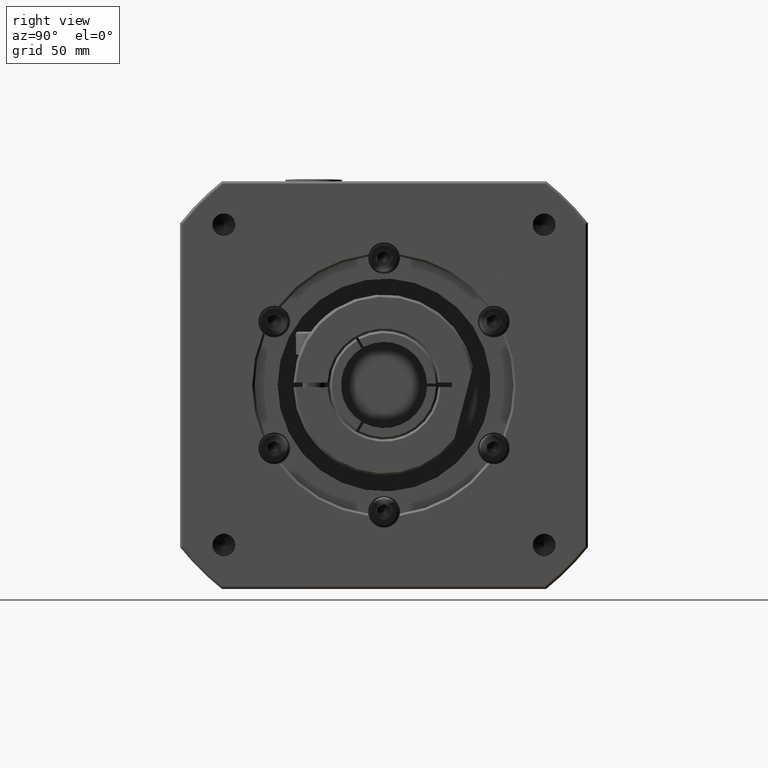
[diagram: clean part render]
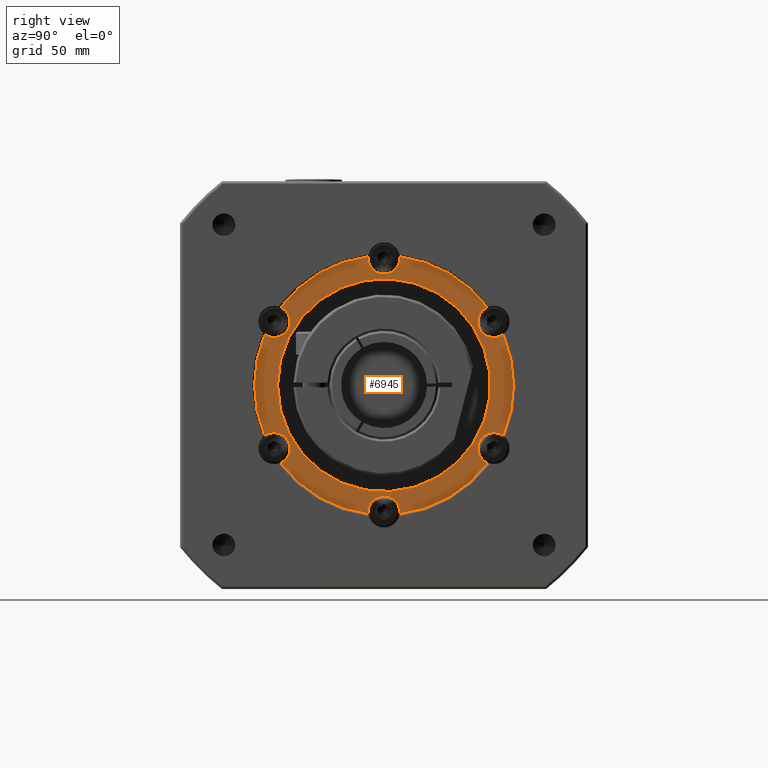
[diagram: same view with one face highlighted and labeled with its STEP entity id]
A machine part, right view. The second image highlights one B-rep face of the part: STEP entity #6945.
In plain terms, the highlighted planar face has unit normal (-1, -0, -0).
Its self-contained STEP definition (entity closure, byte-faithful):
#1502=FACE_BOUND('',#2478,.T.);
#1891=FACE_OUTER_BOUND('',#2477,.T.);
#2477=EDGE_LOOP('',(#5520,#5521,#5522,#5523,#5524,#5525,#5526,#5527,#5528,
#5529,#5530,#5531));
#2478=EDGE_LOOP('',(#5532));
#3119=CIRCLE('',#7544,7.);
#3140=CIRCLE('',#7568,7.);
#3142=CIRCLE('',#7572,7.);
#3145=CIRCLE('',#7577,7.);
#3148=CIRCLE('',#7582,7.);
#3151=CIRCLE('',#7587,7.);
#3158=CIRCLE('',#7606,47.);
#3168=CIRCLE('',#7633,57.15);
#3169=CIRCLE('',#7634,57.15);
#3170=CIRCLE('',#7635,57.15);
#3171=CIRCLE('',#7636,57.15);
#3172=CIRCLE('',#7637,57.15);
#3173=CIRCLE('',#7638,57.15);
#3613=VERTEX_POINT('',#11150);
#3614=VERTEX_POINT('',#11152);
#3639=VERTEX_POINT('',#11214);
#3640=VERTEX_POINT('',#11216);
#3643=VERTEX_POINT('',#11232);
#3644=VERTEX_POINT('',#11234);
#3648=VERTEX_POINT('',#11252);
#3649=VERTEX_POINT('',#11254);
#3653=VERTEX_POINT('',#11272);
#3654=VERTEX_POINT('',#11274);
#3657=VERTEX_POINT('',#11287);
#3658=VERTEX_POINT('',#11289);
#3665=VERTEX_POINT('',#11351);
#4311=EDGE_CURVE('',#3614,#3613,#3119,.T.);
#4340=EDGE_CURVE('',#3640,#3639,#3140,.T.);
#4346=EDGE_CURVE('',#3644,#3643,#3142,.T.);
#4353=EDGE_CURVE('',#3649,#3648,#3145,.T.);
#4360=EDGE_CURVE('',#3654,#3653,#3148,.T.);
#4366=EDGE_CURVE('',#3658,#3657,#3151,.T.);
#4385=EDGE_CURVE('',#3665,#3665,#3158,.T.);
#4398=EDGE_CURVE('',#3644,#3648,#3168,.T.);
#4399=EDGE_CURVE('',#3614,#3643,#3169,.T.);
#4400=EDGE_CURVE('',#3640,#3613,#3170,.T.);
#4401=EDGE_CURVE('',#3658,#3639,#3171,.T.);
#4402=EDGE_CURVE('',#3654,#3657,#3172,.T.);
#4403=EDGE_CURVE('',#3649,#3653,#3173,.T.);
#5520=ORIENTED_EDGE('',*,*,#4353,.T.);
#5521=ORIENTED_EDGE('',*,*,#4398,.F.);
#5522=ORIENTED_EDGE('',*,*,#4346,.T.);
#5523=ORIENTED_EDGE('',*,*,#4399,.F.);
#5524=ORIENTED_EDGE('',*,*,#4311,.T.);
#5525=ORIENTED_EDGE('',*,*,#4400,.F.);
#5526=ORIENTED_EDGE('',*,*,#4340,.T.);
#5527=ORIENTED_EDGE('',*,*,#4401,.F.);
#5528=ORIENTED_EDGE('',*,*,#4366,.T.);
#5529=ORIENTED_EDGE('',*,*,#4402,.F.);
#5530=ORIENTED_EDGE('',*,*,#4360,.T.);
#5531=ORIENTED_EDGE('',*,*,#4403,.F.);
#5532=ORIENTED_EDGE('',*,*,#4385,.T.);
#6634=PLANE('',#7632);
#6945=ADVANCED_FACE('',(#1891,#1502),#6634,.F.);
#7544=AXIS2_PLACEMENT_3D('',#11153,#8782,#8783);
#7568=AXIS2_PLACEMENT_3D('',#11217,#8836,#8837);
#7572=AXIS2_PLACEMENT_3D('',#11235,#8846,#8847);
#7577=AXIS2_PLACEMENT_3D('',#11255,#8858,#8859);
#7582=AXIS2_PLACEMENT_3D('',#11275,#8870,#8871);
#7587=AXIS2_PLACEMENT_3D('',#11290,#8882,#8883);
#7606=AXIS2_PLACEMENT_3D('',#11352,#8924,#8925);
#7632=AXIS2_PLACEMENT_3D('',#11426,#8978,#8979);
#7633=AXIS2_PLACEMENT_3D('',#11427,#8980,#8981);
#7634=AXIS2_PLACEMENT_3D('',#11428,#8982,#8983);
#7635=AXIS2_PLACEMENT_3D('',#11429,#8984,#8985);
#7636=AXIS2_PLACEMENT_3D('',#11430,#8986,#8987);
#7637=AXIS2_PLACEMENT_3D('',#11431,#8988,#8989);
#7638=AXIS2_PLACEMENT_3D('',#11432,#8990,#8991);
#8782=DIRECTION('center_axis',(-1.,-1.31251199484194E-15,-2.76291701760916E-15));
#8783=DIRECTION('ref_axis',(-3.81412349468305E-16,-0.866025403784439,0.5));
#8836=DIRECTION('center_axis',(-1.,-1.31251199484194E-15,-2.76291701760916E-15));
#8837=DIRECTION('ref_axis',(2.38150466814086E-15,-0.866025403784439,-0.5));
#8846=DIRECTION('center_axis',(-1.,-1.31251199484194E-15,-2.76291701760916E-15));
#8847=DIRECTION('ref_axis',(-2.76291701760916E-15,-1.23699614282294E-16,
1.));
#8858=DIRECTION('center_axis',(-1.,-1.31251199484194E-15,-2.76291701760916E-15));
#8859=DIRECTION('ref_axis',(-2.38150466814086E-15,0.866025403784439,0.499999999999999));
#8870=DIRECTION('center_axis',(-1.,-1.31251199484194E-15,-2.76291701760916E-15));
#8871=DIRECTION('ref_axis',(3.81412349468306E-16,0.866025403784438,-0.5));
#8882=DIRECTION('center_axis',(-1.,-1.31251199484194E-15,-2.76291701760916E-15));
#8883=DIRECTION('ref_axis',(2.76291701760916E-15,-3.49036749498708E-17,
-1.));
#8924=DIRECTION('center_axis',(-1.,-1.31251199484194E-15,-2.76291701760916E-15));
#8925=DIRECTION('ref_axis',(2.76291701760916E-15,1.23699614282294E-16,-1.));
#8978=DIRECTION('center_axis',(-1.,-1.31251199484194E-15,-2.76291701760916E-15));
#8979=DIRECTION('ref_axis',(2.8421709430404E-15,0.,-1.));
#8980=DIRECTION('center_axis',(-1.,-1.31251199484194E-15,-2.76291701760916E-15));
#8981=DIRECTION('ref_axis',(2.76291701760916E-15,1.23699614282294E-16,-1.));
#8982=DIRECTION('center_axis',(-1.,-1.31251199484194E-15,-2.76291701760916E-15));
#8983=DIRECTION('ref_axis',(2.76291701760916E-15,1.23699614282294E-16,-1.));
#8984=DIRECTION('center_axis',(-1.,-1.31251199484194E-15,-2.76291701760916E-15));
#8985=DIRECTION('ref_axis',(2.76291701760916E-15,1.23699614282294E-16,-1.));
#8986=DIRECTION('center_axis',(-1.,-1.31251199484194E-15,-2.76291701760916E-15));
#8987=DIRECTION('ref_axis',(2.76291701760916E-15,1.23699614282294E-16,-1.));
#8988=DIRECTION('center_axis',(-1.,-1.31251199484194E-15,-2.76291701760916E-15));
#8989=DIRECTION('ref_axis',(2.76291701760916E-15,1.23699614282294E-16,-1.));
#8990=DIRECTION('center_axis',(-1.,-1.31251199484194E-15,-2.76291701760916E-15));
#8991=DIRECTION('ref_axis',(2.76291701760916E-15,1.23699614282294E-16,-1.));
#11150=CARTESIAN_POINT('',(-34.9857500619036,55.6904469676673,-15.3490913761034));
#11152=CARTESIAN_POINT('',(-34.9857500619037,62.6528731158861,-3.28981554344248));
#11153=CARTESIAN_POINT('Origin',(-34.9857500619036,59.7989292008705,-9.68160747763008));
#11214=CARTESIAN_POINT('',(-34.9857500619035,62.6528731158861,-72.0733994118177));
#11216=CARTESIAN_POINT('',(-34.9857500619035,55.6904469676673,-60.0141235791567));
#11217=CARTESIAN_POINT('Origin',(-34.9857500619035,59.7989292008705,-65.6816074776301));
#11232=CARTESIAN_POINT('',(-34.9857500619038,101.33392566458,19.0427005580842));
#11234=CARTESIAN_POINT('',(-34.9857500619038,115.258777961018,19.0427005580842));
#11235=CARTESIAN_POINT('Origin',(-34.9857500619038,108.296351812799,18.3183925223699));
#11252=CARTESIAN_POINT('',(-34.9857500619038,153.939830509712,-3.28981554344251));
#11254=CARTESIAN_POINT('',(-34.9857500619038,160.902256657931,-15.3490913761034));
#11255=CARTESIAN_POINT('Origin',(-34.9857500619038,156.793774424728,-9.68160747763011));
#11272=CARTESIAN_POINT('',(-34.9857500619036,160.902256657931,-60.0141235791568));
#11274=CARTESIAN_POINT('',(-34.9857500619036,153.939830509712,-72.0733994118177));
#11275=CARTESIAN_POINT('Origin',(-34.9857500619036,156.793774424728,-65.6816074776301));
#11287=CARTESIAN_POINT('',(-34.9857500619035,115.258777961018,-94.4059155133444));
#11289=CARTESIAN_POINT('',(-34.9857500619035,101.33392566458,-94.4059155133444));
#11290=CARTESIAN_POINT('Origin',(-34.9857500619035,108.296351812799,-93.6816074776301));
#11351=CARTESIAN_POINT('',(-34.9857500619036,61.296351812799,-37.6816074776301));
#11352=CARTESIAN_POINT('Origin',(-34.9857500619036,108.296351812799,-37.6816074776301));
#11426=CARTESIAN_POINT('Origin',(-34.9857500619036,61.296351812799,-37.6816074776301));
#11427=CARTESIAN_POINT('Origin',(-34.9857500619036,108.296351812799,-37.6816074776301));
#11428=CARTESIAN_POINT('Origin',(-34.9857500619036,108.296351812799,-37.6816074776301));
#11429=CARTESIAN_POINT('Origin',(-34.9857500619036,108.296351812799,-37.6816074776301));
#11430=CARTESIAN_POINT('Origin',(-34.9857500619036,108.296351812799,-37.6816074776301));
#11431=CARTESIAN_POINT('Origin',(-34.9857500619036,108.296351812799,-37.6816074776301));
#11432=CARTESIAN_POINT('Origin',(-34.9857500619036,108.296351812799,-37.6816074776301));